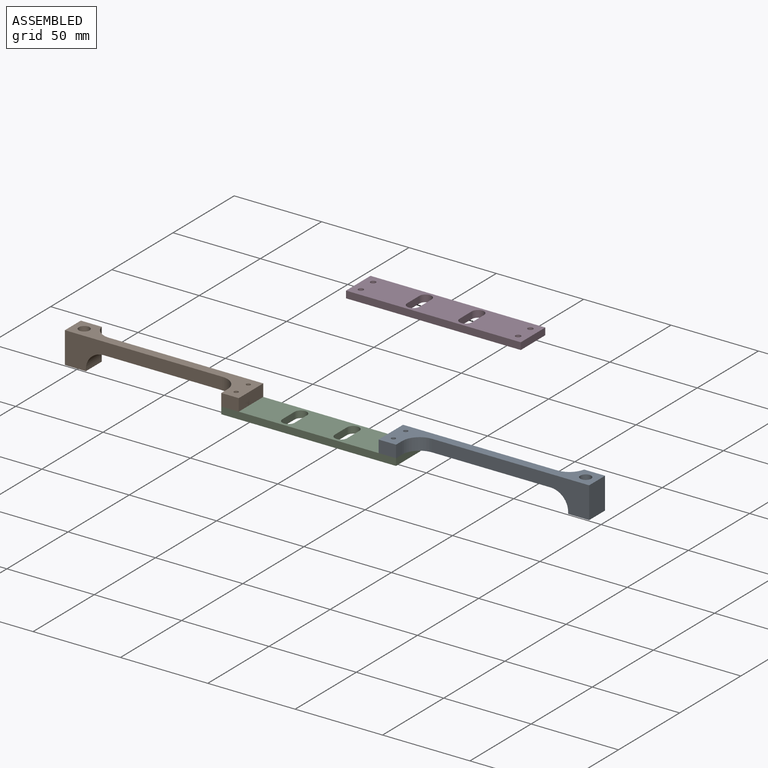
[diagram: assembled view]
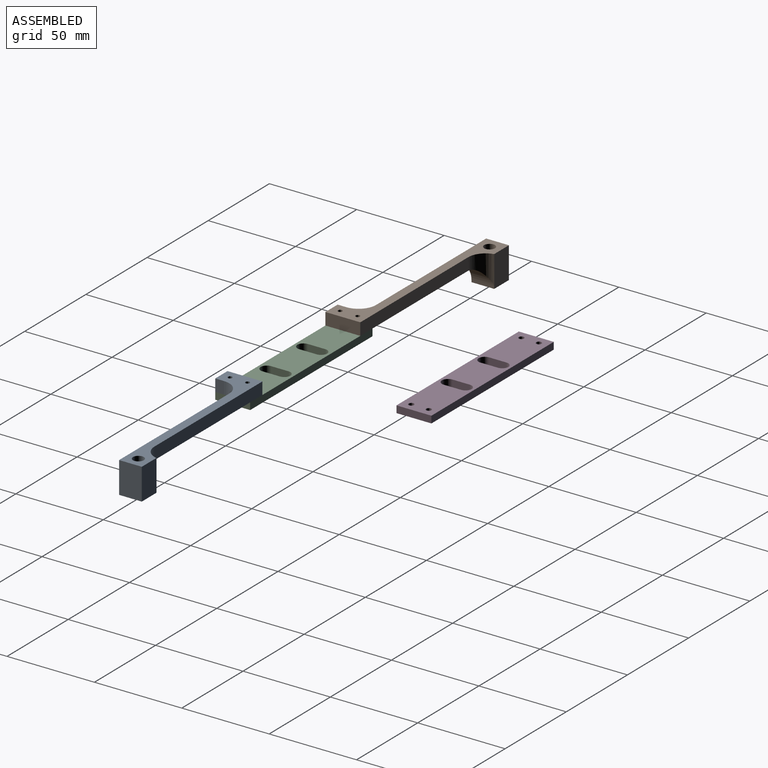
[diagram: assembled view, second angle]
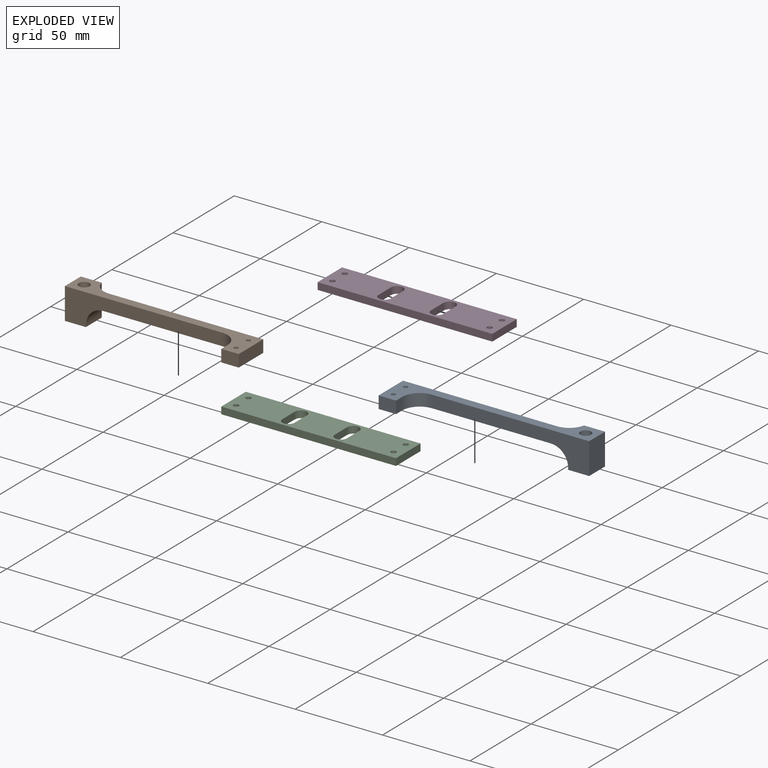
[diagram: exploded view]
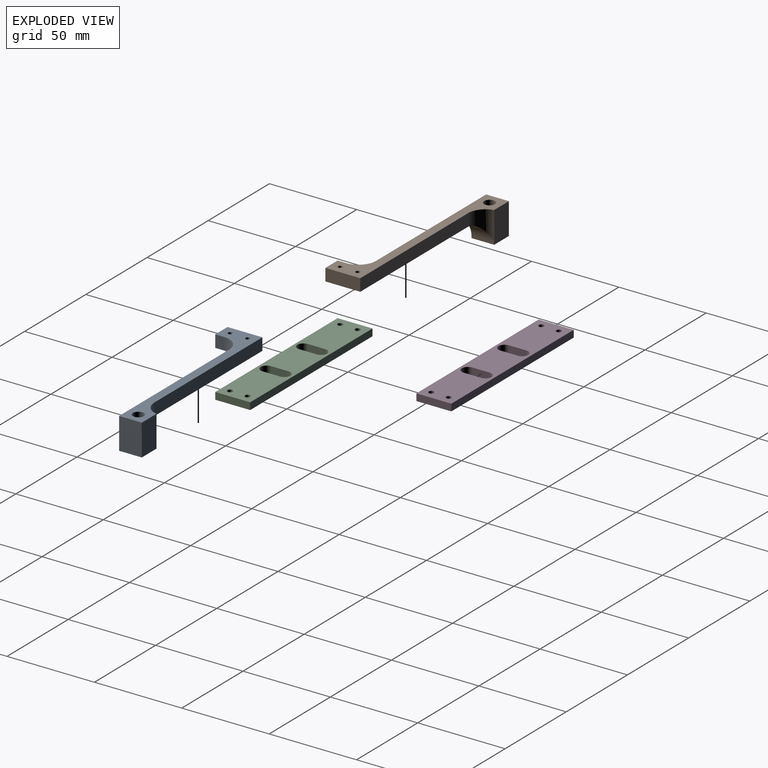
[diagram: exploded view, second angle]
ASSEMBLY  parts=4 mates=2
PART A: 17 faces, bbox 110x28x18 mm
  f0: plane 110x28mm, normal (0,0,-1), area 797.9mm2, adj f2,f3,f4,f5,f6,f8,f9,f10
  f1: plane 88x20mm, normal (0,0,1), area 602.4mm2, adj f3,f4,f5,f6,f8,f10,f13,f14
  f2: plane 18x13mm, normal (-1,0,0), area 234mm2, adj f0,f9,f11,f13
  f3: plane 7x5mm, normal (-1,0,0), area 35mm2, adj f0,f1,f4,f15
  f4: plane 10x7mm, normal (0,-1,0), area 70mm2, adj f0,f1,f3,f5
  f5: plane 20x7mm, normal (1,0,0), area 140mm2, adj f0,f1,f4,f6
  f6: plane 88.2x7mm, normal (0,1,0), area 617.4mm2, adj f0,f1,f5,f14,f16
  f7: plane 13x1mm, normal (1,0,0), area 13mm2, adj f9,f11,f13,f14
  f8: cylinder r=1.2mm len=7mm, axis (0,0,-1), area 52.8mm2, adj f0,f1
  f9: plane 18x12mm, normal (0,1,0), area 216mm2, adj f0,f2,f7,f11,f16
  f10: cylinder r=1.2mm len=7mm, axis (0,0,-1), area 52.8mm2, adj f0,f1
  f11: plane 13x12mm, normal (0,0,1), area 125.8mm2, adj f2,f7,f9,f12,f13
  f12: cylinder r=3.1mm len=18mm, axis (0,0,1), area 350.6mm2, adj f0,f11
  f13: plane 90x18mm, normal (0,-1,0), area 783.5mm2, adj f0,f1,f2,f7,f11,f14,f15
  f14: cylinder r=10mm len=13mm, axis (0,-1,0), area 130mm2, adj f1,f6,f7,f13,f16
  f15: cylinder r=10mm len=10mm, axis (0,0,-1), area 110mm2, adj f0,f1,f3,f13
  f16: cylinder r=10mm len=17mm, axis (0,0,-1), area 138.5mm2, adj f0,f6,f9,f14
PART B: 17 faces, bbox 110x28x18 mm
  f0: plane 110x28mm, normal (0,0,-1), area 797.9mm2, adj f2,f3,f4,f5,f6,f8,f9,f10
  f1: plane 88x20mm, normal (0,0,1), area 602.4mm2, adj f3,f4,f5,f6,f8,f10,f13,f14
  f2: plane 18x13mm, normal (1,0,0), area 234mm2, adj f0,f9,f11,f13
  f3: plane 7x5mm, normal (1,0,0), area 35mm2, adj f0,f1,f4,f15
  f4: plane 10x7mm, normal (0,-1,0), area 70mm2, adj f0,f1,f3,f5
  f5: plane 20x7mm, normal (-1,0,0), area 140mm2, adj f0,f1,f4,f6
  f6: plane 88.2x7mm, normal (0,1,0), area 617.4mm2, adj f0,f1,f5,f14,f16
  f7: plane 13x1mm, normal (-1,0,0), area 13mm2, adj f9,f11,f13,f14
  f8: cylinder r=1.2mm len=7mm, axis (0,0,-1), area 52.8mm2, adj f0,f1
  f9: plane 18x12mm, normal (0,1,0), area 216mm2, adj f0,f2,f7,f11,f16
  f10: cylinder r=1.2mm len=7mm, axis (0,0,-1), area 52.8mm2, adj f0,f1
  f11: plane 13x12mm, normal (0,0,1), area 125.8mm2, adj f2,f7,f9,f12,f13
  f12: cylinder r=3.1mm len=18mm, axis (0,0,1), area 350.6mm2, adj f0,f11
  f13: plane 90x18mm, normal (0,-1,0), area 783.5mm2, adj f0,f1,f2,f7,f11,f14,f15
  f14: cylinder r=10mm len=13mm, axis (0,-1,0), area 130mm2, adj f1,f6,f7,f13,f16
  f15: cylinder r=10mm len=10mm, axis (0,0,-1), area 110mm2, adj f0,f1,f3,f13
  f16: cylinder r=10mm len=17mm, axis (0,0,-1), area 138.5mm2, adj f0,f6,f9,f14
PART C: 18 faces, bbox 100x20x4 mm
  f0: plane 100x4mm, normal (0,-1,0), area 400mm2, adj f1,f15,f16,f17
  f1: plane 20x4mm, normal (1,0,0), area 80mm2, adj f0,f2,f16,f17
  f2: plane 100x4mm, normal (0,1,0), area 400mm2, adj f1,f15,f16,f17
  f3: cylinder r=3.5mm len=7mm, axis (0,0,-1), area 44mm2, adj f4,f9,f16,f17
  f4: plane 10x4mm, normal (-1,0,0), area 40mm2, adj f3,f5,f16,f17
  f5: cylinder r=3.5mm len=7mm, axis (0,0,-1), area 44mm2, adj f4,f9,f16,f17
  f6: cylinder r=3.5mm len=7mm, axis (0,0,-1), area 44mm2, adj f7,f14,f16,f17
  f7: plane 10x4mm, normal (1,0,0), area 40mm2, adj f6,f8,f16,f17
  f8: cylinder r=3.5mm len=7mm, axis (0,0,-1), area 44mm2, adj f7,f14,f16,f17
  f9: plane 10x4mm, normal (1,0,0), area 40mm2, adj f3,f5,f16,f17
  f10: cylinder r=1.5mm len=4mm, axis (0,0,-1), area 37.7mm2, adj f16,f17
  f11: cylinder r=1.5mm len=4mm, axis (0,0,-1), area 37.7mm2, adj f16,f17
  f12: cylinder r=1.5mm len=4mm, axis (0,0,-1), area 37.7mm2, adj f16,f17
  f13: cylinder r=1.5mm len=4mm, axis (0,0,-1), area 37.7mm2, adj f16,f17
  f14: plane 10x4mm, normal (-1,0,0), area 40mm2, adj f6,f8,f16,f17
  f15: plane 20x4mm, normal (-1,0,0), area 80mm2, adj f0,f2,f16,f17
  f16: plane 100x20mm, normal (0,0,1), area 1754.8mm2, adj f0,f1,f2,f3,f4,f5,f6,f7
  f17: plane 100x20mm, normal (0,0,-1), area 1754.8mm2, adj f0,f1,f2,f3,f4,f5,f6,f7
PART D: same geometry as C
PLACE A rot(axis=(0,-1,0),180deg) t=(-11.87,-19.19,35.45)mm
PLACE B rot(axis=(0,-1,0),180deg) t=(-11.87,-19.19,35.45)mm
PLACE C t=(-11.87,-19.19,20.45)mm
PLACE D t=(-12.7,83.94,40.8)mm
MATE fastened B.f8 <-> C.f10  axis (0,0,-1) through (-56.87,-14.19,24.45)mm
MATE fastened A.f10 <-> C.f12  axis (0,0,-1) through (33.13,-24.19,24.45)mm
